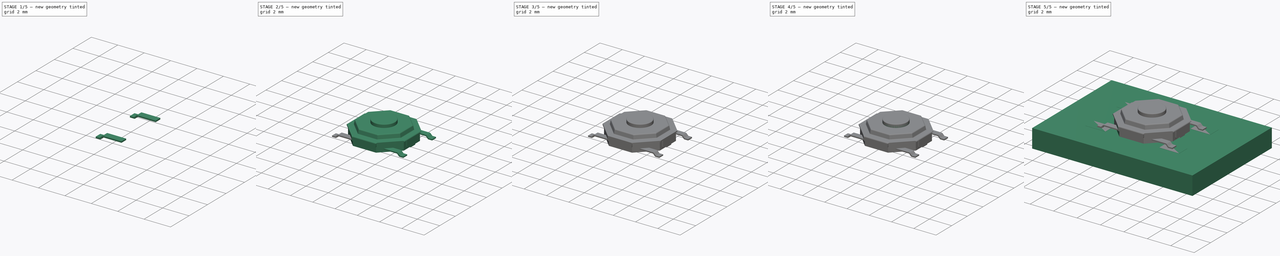
[diagram: build sequence overview — one tinted view per stage of 5, left to right]
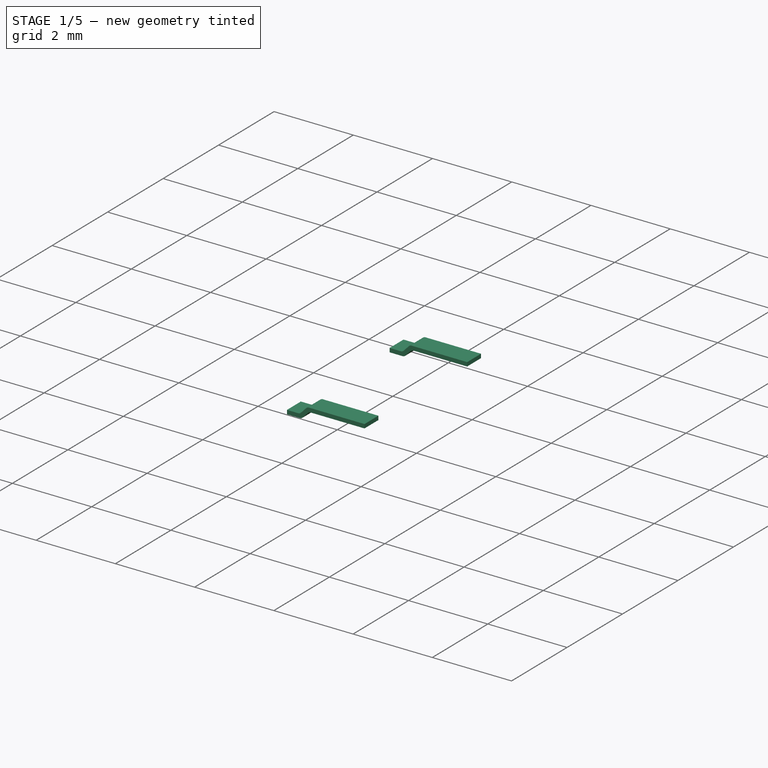
[diagram: stage 1 of 5 — iso view after this stage's code; geometry added in this stage tinted green]
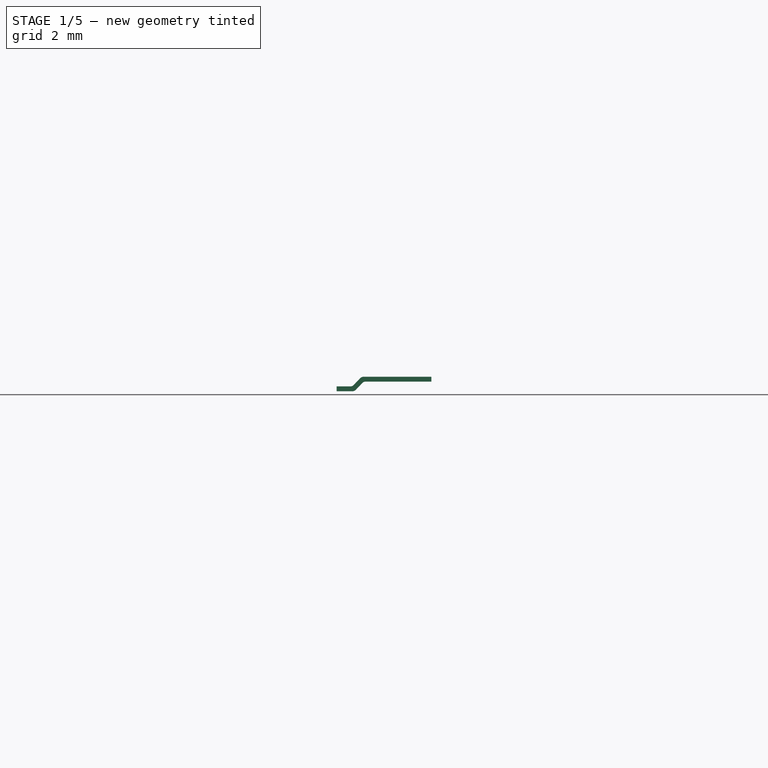
[diagram: stage 1 of 5 — front view after this stage's code; geometry added in this stage tinted green]
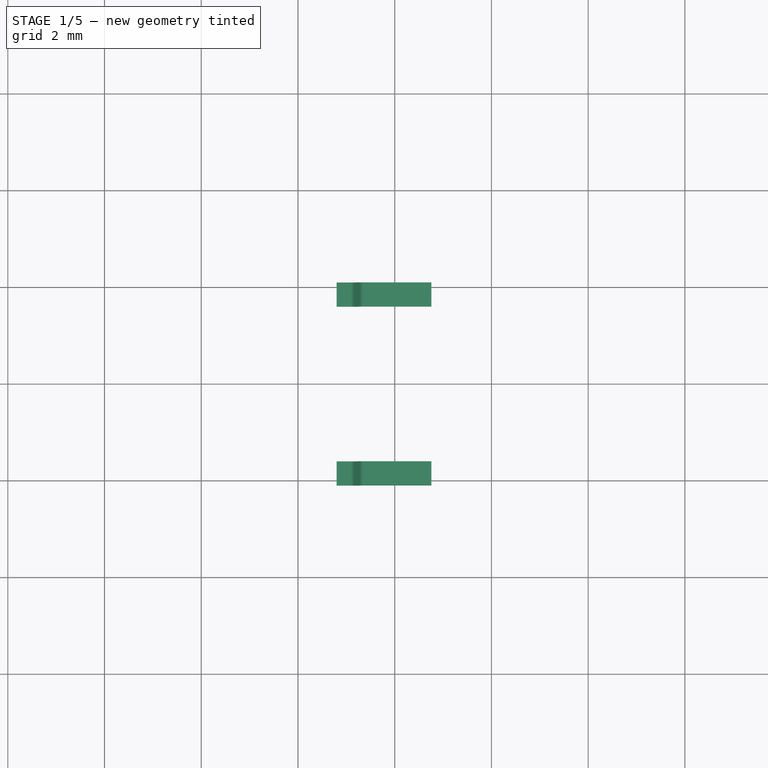
[diagram: stage 1 of 5 — top view after this stage's code; geometry added in this stage tinted green]
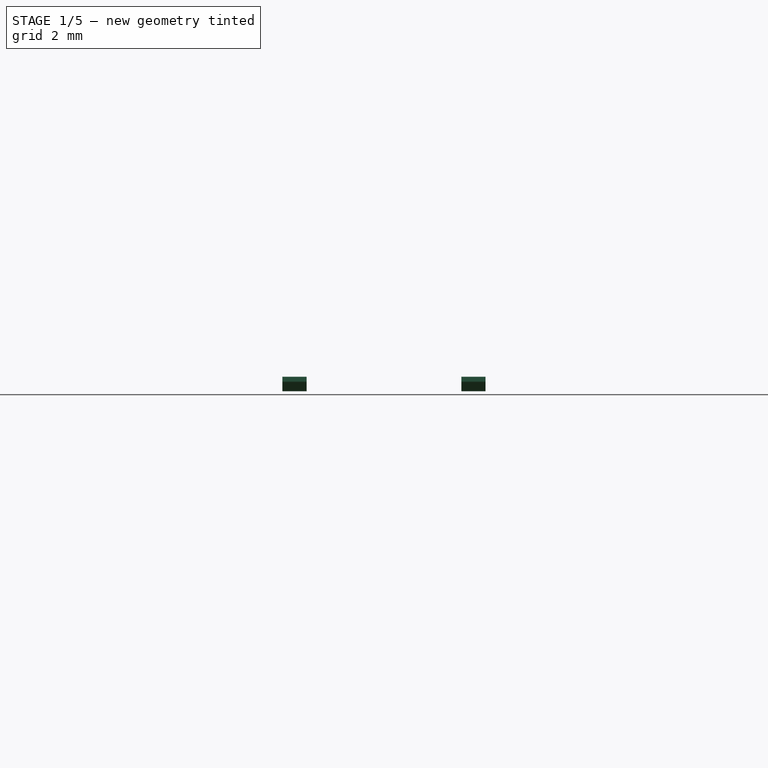
[diagram: stage 1 of 5 — right view after this stage's code; geometry added in this stage tinted green]
FCSTD DOCUMENT  (FreeCAD 0.18R13536 (Git))
Label: SW_SPST_TL3342
License: CreativeCommons Attribution-ShareAlike
LicenseURL: http://creativecommons.org/licenses/by-sa/4.0/
objects: Sketcher::SketchObject×14, PartDesign::Pad×10, Part::FeaturePython×9, App::DocumentObjectGroup×6, PartDesign::Body×5, Part::Feature×4, PartDesign::Plane×3, PartDesign::Fillet×3, Part::Fillet×3, Part::MultiFuse×2, PartDesign::ShapeBinder×2, Part::Sweep×1
note: 66 computed .brp shape members not serialized (recipe doc carries the construction recipe); baked Part::Feature solids carry a one-line shape summary decoded from their .brp

FEATURE [App::DocumentObjectGroup] Grupo  label="Carcaza"
  Group = -> [Body,Body001,Sketch004,Fusion,Fillet004002]
FEATURE [Part::Feature] Fillet004002001  label="Carcaza001"
  shape: bbox 5.201 x 5.201 x 1.235 mm, 106 faces (baked)
FEATURE [Sketcher::SketchObject] Sketch015  label="1.Sketch015"
  MapMode = 5
  Placement = pos=(0,0,0) rot=(1,0,0;1.5708rad)
  Support = -> [XZ_Plane004]
  sketch-geometry (14):
    g0: LineSegment StartX=1.24312 StartY=0.3 StartZ=0 EndX=2.64312 EndY=0.3 EndZ=0
    g1: LineSegment StartX=2.71584 StartY=0.268645 StartZ=0 EndX=2.84544 EndY=0.131355 EndZ=0
    g2: LineSegment StartX=2.91815 StartY=0.1 StartZ=0 EndX=3.2 EndY=0.1 EndZ=0
    g3: LineSegment StartX=3.2 StartY=0.1 StartZ=0 EndX=3.2 EndY=0 EndZ=0
    g4: LineSegment StartX=3.2 StartY=0 StartZ=0 EndX=2.87503 EndY=0 EndZ=0
    g5: LineSegment StartX=2.80232 StartY=0.0313553 StartZ=0 EndX=2.67272 EndY=0.168645 EndZ=0
    g6: LineSegment StartX=2.6 StartY=0.2 StartZ=0 EndX=1.24312 EndY=0.2 EndZ=0
    g7: LineSegment StartX=1.24312 StartY=0.2 StartZ=0 EndX=1.24312 EndY=0.3 EndZ=0
    g8: ArcOfCircle CenterX=2.6 CenterY=0.1 CenterZ=0 NormalX=0 NormalY=0 NormalZ=1 AngleXU=0 Radius=0.1 StartAngle=0.756591 EndAngle=1.5708
    g9: ArcOfCircle CenterX=2.64312 CenterY=0.2 CenterZ=0 NormalX=0 NormalY=0 NormalZ=1 AngleXU=0 Radius=0.1 StartAngle=0.756591 EndAngle=1.5708
    g10: ArcOfCircle CenterX=2.87503 CenterY=0.1 CenterZ=0 NormalX=0 NormalY=0 NormalZ=1 AngleXU=0 Radius=0.1 StartAngle=3.89818 EndAngle=4.71239
    g11: ArcOfCircle CenterX=2.91815 CenterY=0.2 CenterZ=0 NormalX=0 NormalY=0 NormalZ=1 AngleXU=0 Radius=0.1 StartAngle=3.89818 EndAngle=4.71239
    g12: LineSegment [constr] StartX=2.67272 StartY=0.168645 StartZ=0 EndX=2.74544 EndY=0.237289 EndZ=0
    g13: LineSegment [constr] StartX=2.84544 StartY=0.131355 StartZ=0 EndX=2.77272 EndY=0.0627107 EndZ=0
  constraints (38):
    c: Horizontal(g0)
    c: Horizontal(g2)
    c: Coincident(g2,g3)
    c: Vertical(g3)
    c: Coincident(g3,g4)
    c: Horizontal(g4)
    c: Horizontal(g6)
    c: Coincident(g6,g7)
    c: Coincident(g7,g0)
    c: Vertical(g7)
    c: Tangent(g5,g8) = -1.5708
    c: Tangent(g6,g8) = -1.5708
    c: Tangent(g1,g9) = 1.5708
    c: Tangent(g0,g9) = 1.5708
    c: Tangent(g4,g10) = 1.5708
    c: Tangent(g5,g10) = 1.5708
    c: Tangent(g2,g11) = -1.5708
    c: Tangent(g1,g11) = -1.5708
    c: Equal(g10,g11)
    c: Equal(g11,g8)
    c: Equal(g8,g9)
    c: Coincident(g12,g5)
    c: PointOnObject(g12,g1)
    c: Perpendicular(g12,g5)
    c: Equal(g12,g3)
    c: Equal(g3,g7)
    c: DistanceY(g3,g3) = 0.1
    c: DistanceX(g-1,g3) = 3.2
    c: PointOnObject(g3,g-1)
    c: Coincident(g13,g1)
    c: PointOnObject(g13,g5)
    c: Perpendicular(g1,g13)
    c: Equal(g13,g12)
    c: DistanceY(g2,g6) = 0.1
    c: DistanceX(g-1,g6) = 2.6
    c: Radius(g9) = 0.1
    c: DistanceX(g12,g1) = 0.1
    c: DistanceX(g0,g0) = 1.4
FEATURE [PartDesign::Pad] Pad007003  label="1.Pad007003"
  Length = 0.5
  Length2 = 100
  Midplane = true
  Placement = pos=(0,0,0) rot=(1,0,0;1.5708rad)
  Profile = -> Sketch015
  Refine = true
  Type = 0
FEATURE [PartDesign::Body] Body004  label="PIN_"
  Group = -> [Sketch015,Pad007003]
  Origin = -> Origin004
  Tip = -> Pad007003
FEATURE [Part::FeaturePython] Clone  label="PIN4"  # Draft clone (typed FeaturePython)
  AttacherType = Attacher::AttachEngine3D
  Fuse = false
  Objects = -> [Pad007003]
  Placement = pos=(0,1.85,0) rot=(1,0,0;1.5708rad)
  Scale = (1,1,1)
FEATURE [Part::FeaturePython] Clone001  label="PIN2"  # Draft clone (typed FeaturePython)
  AttacherType = Attacher::AttachEngine3D
  Fuse = false
  Objects = -> [Clone]
  Placement = pos=(0,-1.85,0) rot=(1,0,0;1.5708rad)
  Scale = (1,1,1)
FEATURE [App::DocumentObjectGroup] Grupo004  label="PIN__"
  Group = -> [Body004]
FEATURE [App::DocumentObjectGroup] Grupo002  label="make"
  Group = -> [Grupo001,Grupo,Grupo003,Grupo004]
FEATURE [Part::FeaturePython] Clone002  label="PIN1"  # Draft clone (typed FeaturePython)
  AttacherType = Attacher::AttachEngine3D
  Fuse = false
  Objects = -> [Clone]
  Placement = pos=(0,-1.85,0) rot=(0,0.707107,0.707107;3.14159rad)
  Scale = (1,1,1)
FEATURE [Part::FeaturePython] Clone003  label="PIN3"  # Draft clone (typed FeaturePython)
  AttacherType = Attacher::AttachEngine3D
  Fuse = false
  Objects = -> [Clone001]
  Placement = pos=(0,1.85,0) rot=(0,0.707107,0.707107;3.14159rad)
  Scale = (1,1,1)
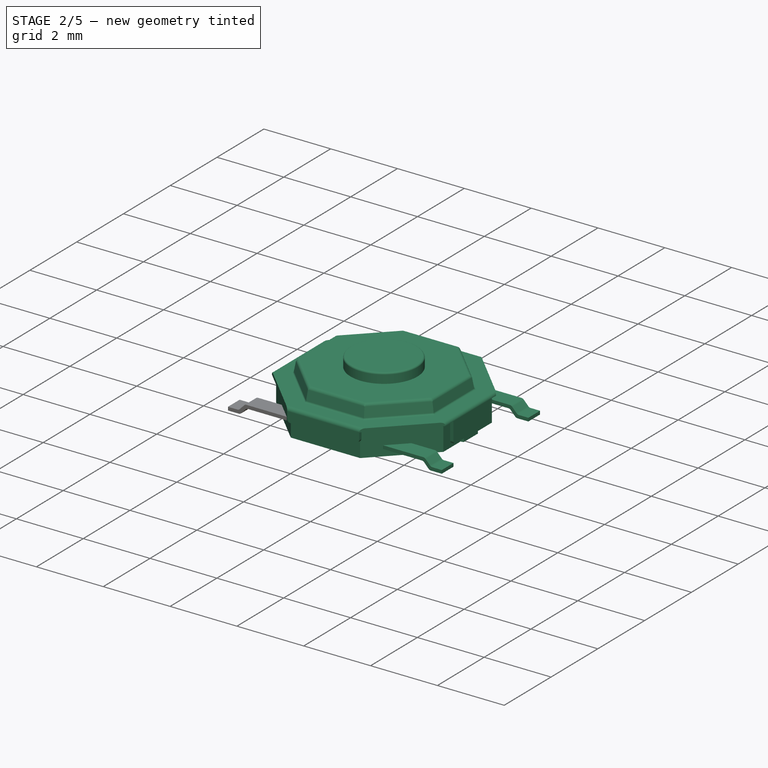
[diagram: stage 2 of 5 — iso view after this stage's code; geometry added in this stage tinted green]
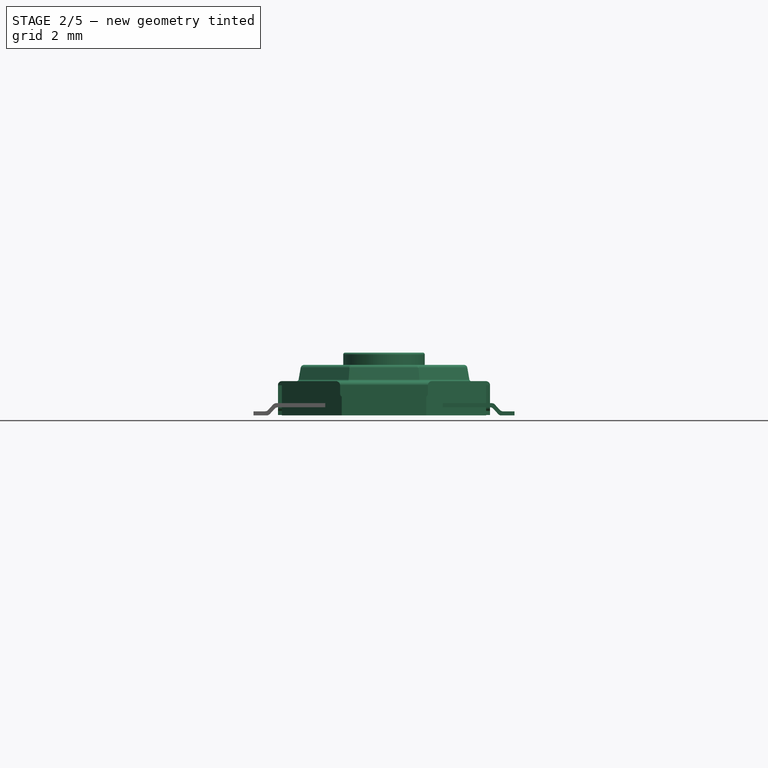
[diagram: stage 2 of 5 — front view after this stage's code; geometry added in this stage tinted green]
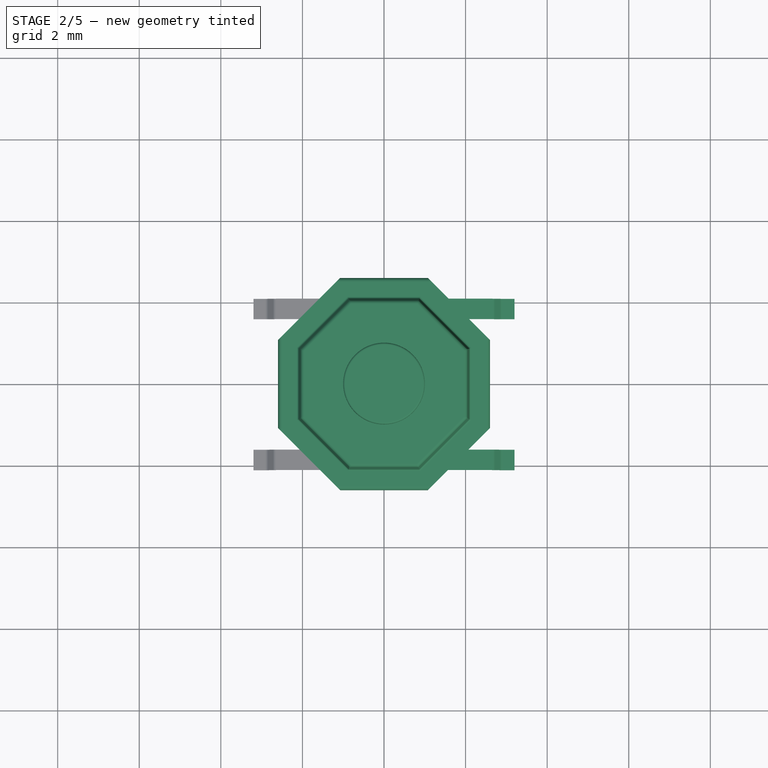
[diagram: stage 2 of 5 — top view after this stage's code; geometry added in this stage tinted green]
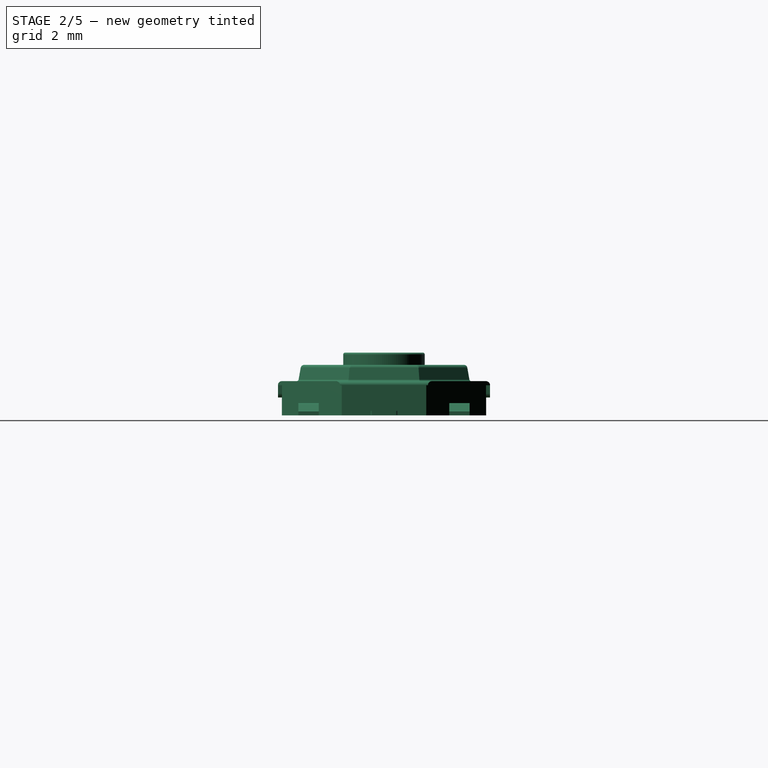
[diagram: stage 2 of 5 — right view after this stage's code; geometry added in this stage tinted green]
FEATURE [App::DocumentObjectGroup] SW_SPST_TL3342_fp
  Group = -> [FCrtYd_lines,FFab_lines,Filk_lines,TopPads,newPCB]
FEATURE [PartDesign::Plane] DatumPlane  label="plano_1.24"
  AttachmentOffset = pos=(0,0,1.24) rot=(0,0,1;0rad)
  MapMode = 2
  Placement = pos=(0,0,1.24) rot=(0,0,1;0rad)
  Support = -> [XY_Plane]
FEATURE [Sketcher::SketchObject] Sketch
  MapMode = 5
  Placement = pos=(0,0,1.24) rot=(0,0,1;0rad)
  Support = -> [DatumPlane]
  sketch-geometry (10):
    g0: Circle [constr] CenterX=0 CenterY=0 CenterZ=0 NormalX=0 NormalY=0 NormalZ=1 AngleXU=0 Radius=2.2
    g1: LineSegment StartX=-0.841904 StartY=2.03253 StartZ=0 EndX=0.841904 EndY=2.03253 EndZ=0
    g2: LineSegment StartX=0.841904 StartY=2.03253 StartZ=0 EndX=2.03253 EndY=0.841904 EndZ=0
    g3: LineSegment StartX=2.03253 StartY=0.841904 StartZ=0 EndX=2.03253 EndY=-0.841904 EndZ=0
    g4: LineSegment StartX=2.03253 StartY=-0.841904 StartZ=0 EndX=0.841904 EndY=-2.03253 EndZ=0
    g5: LineSegment StartX=0.841904 StartY=-2.03253 StartZ=0 EndX=-0.841904 EndY=-2.03253 EndZ=0
    g6: LineSegment StartX=-0.841904 StartY=-2.03253 StartZ=0 EndX=-2.03253 EndY=-0.841904 EndZ=0
    g7: LineSegment StartX=-2.03253 StartY=-0.841904 StartZ=0 EndX=-2.03253 EndY=0.841904 EndZ=0
    g8: LineSegment StartX=-2.03253 StartY=0.841904 StartZ=0 EndX=-0.841904 EndY=2.03253 EndZ=0
    g9: Circle CenterX=0 CenterY=0 CenterZ=0 NormalX=0 NormalY=0 NormalZ=1 AngleXU=0 Radius=1
  constraints (33):
    c: Coincident(g0,g-1)
    c: PointOnObject(g1,g0)
    c: PointOnObject(g1,g0)
    c: Horizontal(g1)
    c: Coincident(g1,g2)
    c: PointOnObject(g2,g0)
    c: Coincident(g2,g3)
    c: PointOnObject(g3,g0)
    c: Vertical(g3)
    c: Coincident(g3,g4)
    c: PointOnObject(g4,g0)
    c: Coincident(g4,g5)
    c: PointOnObject(g5,g0)
    c: Horizontal(g5)
    c: Coincident(g5,g6)
    c: PointOnObject(g6,g0)
    c: Coincident(g6,g7)
    c: PointOnObject(g7,g0)
    c: Vertical(g7)
    c: Coincident(g7,g8)
    c: Coincident(g8,g1)
    c: Parallel(g4,g8)
    c: Parallel(g6,g2)
    c: Equal(g7,g8)
    c: Equal(g8,g1)
    c: Equal(g1,g2)
    c: Equal(g2,g3)
    c: Equal(g3,g4)
    c: Equal(g4,g5)
    c: Equal(g5,g6)
    c: Radius(g0) = 2.2
    c: Coincident(g9,g-1)
    c: Radius(g9) = 1
FEATURE [PartDesign::Pad] Pad  label="Pad_Supp"
  Length = 0.1
  Length2 = 100
  Placement = pos=(0,0,1.24) rot=(0,0,1;0rad)
  Profile = -> Sketch
  Refine = true
  Reversed = true
  Type = 0
FEATURE [Sketcher::SketchObject] Sketch004  label="Trayectoria"
  MapMode = 5
  Placement = pos=(0,0,0.84) rot=(0,0,1;0rad)
  Support = -> [DatumPlane002]
  sketch-geometry (9):
    g0: Circle [constr] CenterX=0 CenterY=0 CenterZ=0 NormalX=0 NormalY=0 NormalZ=1 AngleXU=0 Radius=2.18
    g1: LineSegment StartX=-0.83425 StartY=2.01406 StartZ=0 EndX=0.83425 EndY=2.01406 EndZ=0
    g2: LineSegment StartX=0.83425 StartY=2.01406 StartZ=0 EndX=2.01406 EndY=0.83425 EndZ=0
    g3: LineSegment StartX=2.01406 StartY=0.83425 StartZ=0 EndX=2.01406 EndY=-0.83425 EndZ=0
    g4: LineSegment StartX=2.01406 StartY=-0.83425 StartZ=0 EndX=0.83425 EndY=-2.01406 EndZ=0
    g5: LineSegment StartX=0.83425 StartY=-2.01406 StartZ=0 EndX=-0.83425 EndY=-2.01406 EndZ=0
    g6: LineSegment StartX=-0.83425 StartY=-2.01406 StartZ=0 EndX=-2.01406 EndY=-0.83425 EndZ=0
    g7: LineSegment StartX=-2.01406 StartY=-0.83425 StartZ=0 EndX=-2.01406 EndY=0.83425 EndZ=0
    g8: LineSegment StartX=-2.01406 StartY=0.83425 StartZ=0 EndX=-0.83425 EndY=2.01406 EndZ=0
  constraints (30):
    c: Coincident(g0,g-1)
    c: PointOnObject(g1,g0)
    c: PointOnObject(g1,g0)
    c: Horizontal(g1)
    c: Coincident(g1,g2)
    c: PointOnObject(g2,g0)
    c: Coincident(g2,g3)
    c: PointOnObject(g3,g0)
    c: Coincident(g3,g4)
    c: PointOnObject(g4,g0)
    c: Coincident(g4,g5)
    c: PointOnObject(g5,g0)
    c: Horizontal(g5)
    c: Coincident(g5,g6)
    c: PointOnObject(g6,g0)
    c: Coincident(g6,g7)
    c: PointOnObject(g7,g0)
    c: Vertical(g7)
    c: Coincident(g7,g8)
    c: Coincident(g8,g1)
    c: Parallel(g6,g2)
    c: Parallel(g4,g8)
    c: Equal(g2,g1)
    c: Equal(g1,g8)
    c: Equal(g8,g7)
    c: Equal(g7,g6)
    c: Equal(g6,g5)
    c: Equal(g5,g4)
    c: Equal(g4,g3)
    c: Radius(g0) = 2.18
FEATURE [Sketcher::SketchObject] Sketch005  label="base"
  MapMode = 5
  Placement = pos=(0,0,0) rot=(1,0,0;1.5708rad)
  Support = -> [XZ_Plane001]
  sketch-geometry (4):
    g0: LineSegment StartX=-2.03 StartY=1.24 StartZ=0 EndX=-2.1 EndY=0.84 EndZ=0
    g1: LineSegment StartX=-2.1 StartY=0.84 StartZ=0 EndX=-2 EndY=0.84 EndZ=0
    g2: LineSegment StartX=-2 StartY=0.84 StartZ=0 EndX=-1.93 EndY=1.24 EndZ=0
    g3: LineSegment StartX=-1.93 StartY=1.24 StartZ=0 EndX=-2.03 EndY=1.24 EndZ=0
  constraints (13):
    c: Coincident(g0,g1)
    c: Horizontal(g1)
    c: Coincident(g1,g2)
    c: Coincident(g2,g3)
    c: Coincident(g3,g0)
    c: Horizontal(g3)
    c: Parallel(g0,g2)
    c: Equal(g3,g1)
    c: DistanceX(g3,g3) = 0.1
    c: DistanceX(g0,g-1) = 2.03
    c: DistanceX(g0,g-1) = 2.1
    c: DistanceY(g-1,g1) = 0.84
    c: DistanceY(g-1,g2) = 1.24
FEATURE [Part::Sweep] Sweep  label="Sweep-C"
  Frenet = false
  Sections = -> [Sketch005]
  Solid = true
  Spine = -> Sketch004
  Transition = 1
FEATURE [Part::Fillet] Fillet002  label="Fillet002-C"
  Base = -> Sweep
  Edges = 8 edges r=0.09: [Edge1,Edge13,Edge21,Edge29,Edge37,Edge45,Edge53,Edge61]
FEATURE [Part::Fillet] Fillet003  label="Fillet003-A"
  Base = -> Pad
  Edges = 8 edges r=0.09: [Edge3,Edge6,Edge9,Edge12,Edge15,Edge18,Edge21,Edge23]
FEATURE [Part::MultiFuse] Relleno_mp_cp  label="SW_SPST_TL3342_"
  Refine = true
  Shapes = -> [Pad007001,Fillet004001,Fillet004002001,Clone,Clone001,Clone003,Clone002]
FEATURE [Part::Feature] Relleno_fd_cp  label="SW_SPST_TL3342"
  shape: bbox 6.401 x 5.201 x 1.541 mm, 193 faces (baked)
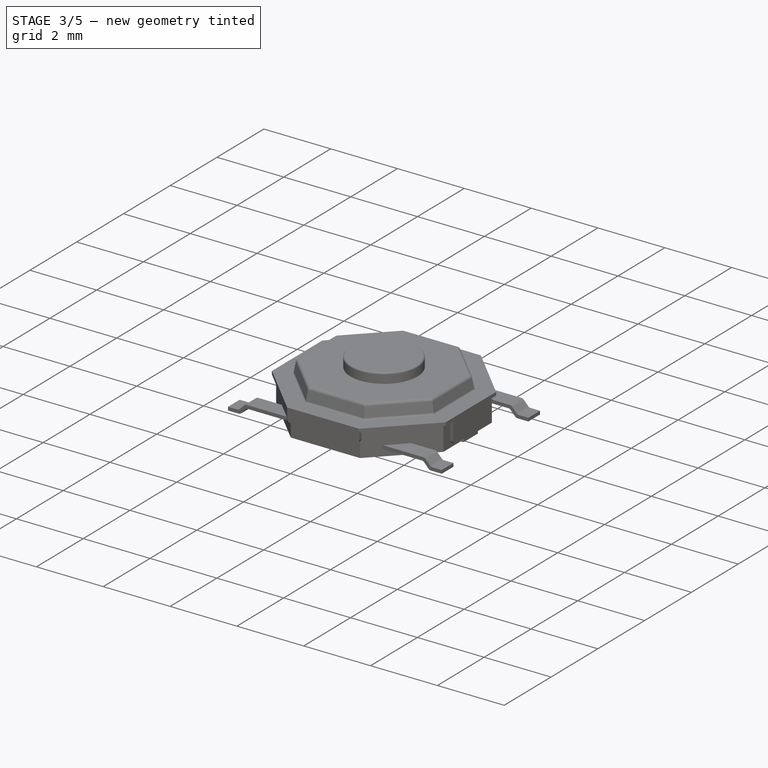
[diagram: stage 3 of 5 — iso view after this stage's code; geometry added in this stage tinted green]
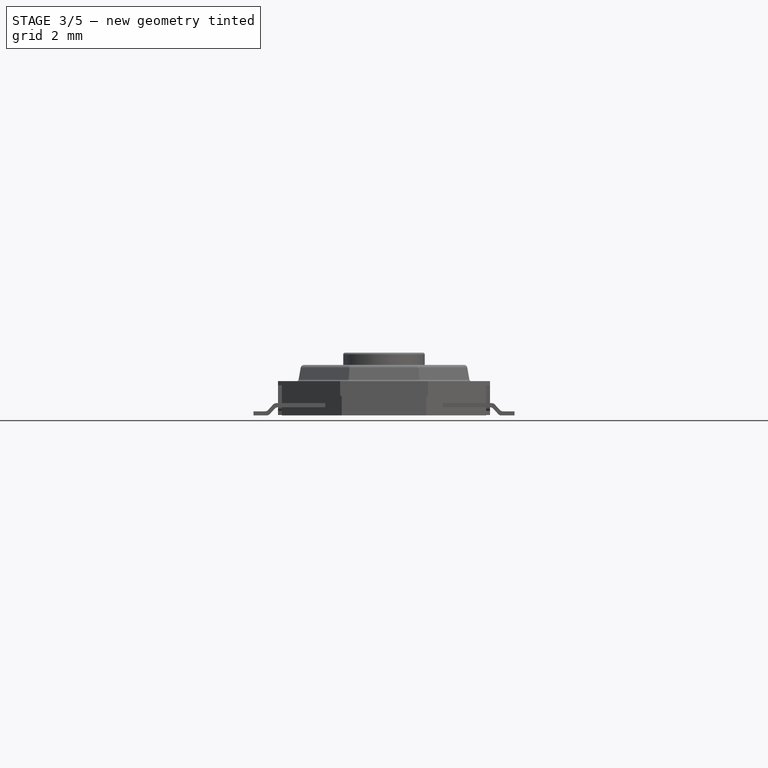
[diagram: stage 3 of 5 — front view after this stage's code; geometry added in this stage tinted green]
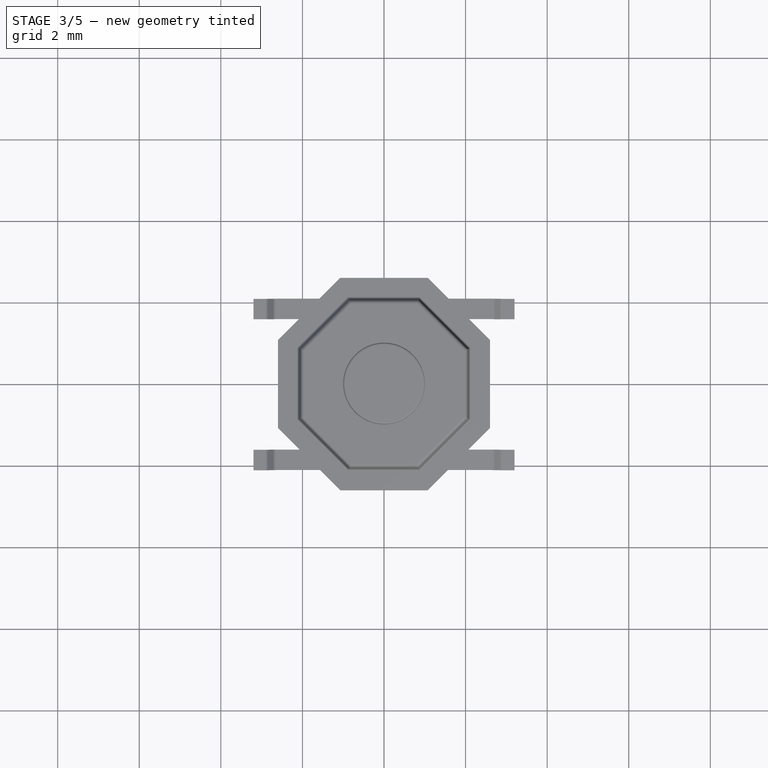
[diagram: stage 3 of 5 — top view after this stage's code; geometry added in this stage tinted green]
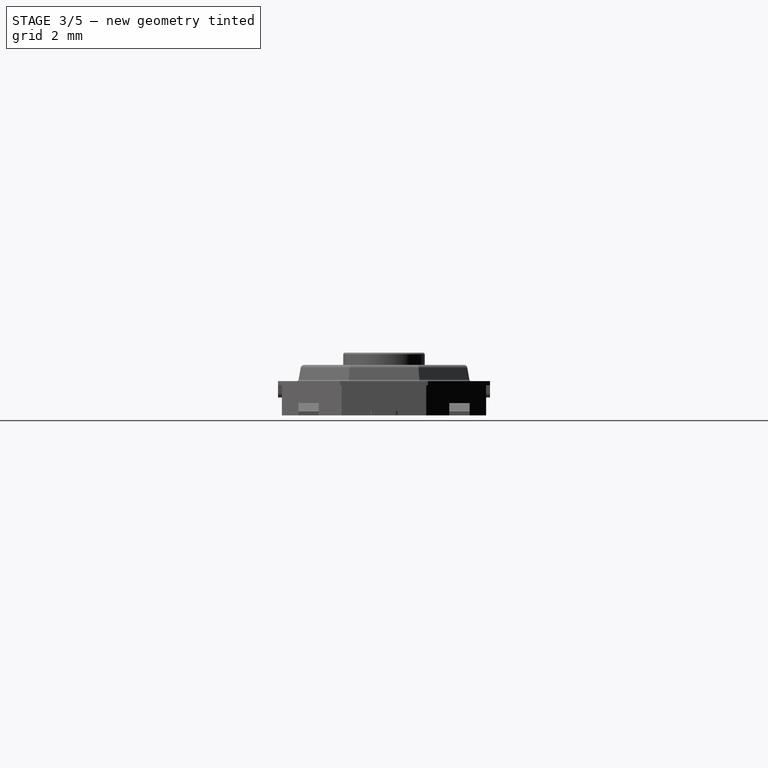
[diagram: stage 3 of 5 — right view after this stage's code; geometry added in this stage tinted green]
FEATURE [PartDesign::Body] Body  label="supp-A"
  Group = -> [DatumPlane,Sketch,Pad]
  Origin = -> Origin
  Tip = -> Pad
FEATURE [PartDesign::Plane] DatumPlane002  label="plano_0.84mm"
  AttachmentOffset = pos=(0,0,0.84) rot=(0,0,1;0rad)
  MapMode = 2
  Placement = pos=(0,0,0.84) rot=(0,0,1;0rad)
  Support = -> [XY_Plane001]
FEATURE [Sketcher::SketchObject] Sketch001
  MapMode = 5
  Placement = pos=(0,0,0.84) rot=(0,0,1;0rad)
  Support = -> [DatumPlane002]
  sketch-geometry (18):
    g0: Circle [constr] CenterX=0 CenterY=0 CenterZ=0 NormalX=0 NormalY=0 NormalZ=1 AngleXU=0 Radius=2.81422
    g1: LineSegment StartX=-1.07696 StartY=2.6 StartZ=0 EndX=1.07696 EndY=2.6 EndZ=0
    g2: LineSegment StartX=1.07696 StartY=2.6 StartZ=0 EndX=2.6 EndY=1.07696 EndZ=0
    g3: LineSegment StartX=2.6 StartY=1.07696 StartZ=0 EndX=2.6 EndY=-1.07696 EndZ=0
    g4: LineSegment StartX=2.6 StartY=-1.07696 StartZ=0 EndX=1.07696 EndY=-2.6 EndZ=0
    g5: LineSegment StartX=1.07696 StartY=-2.6 StartZ=0 EndX=-1.07696 EndY=-2.6 EndZ=0
    g6: LineSegment StartX=-1.07696 StartY=-2.6 StartZ=0 EndX=-2.6 EndY=-1.07696 EndZ=0
    g7: LineSegment StartX=-2.6 StartY=-1.07696 StartZ=0 EndX=-2.6 EndY=1.07696 EndZ=0
    g8: LineSegment StartX=-2.6 StartY=1.07696 StartZ=0 EndX=-1.07696 EndY=2.6 EndZ=0
    g9: Circle [constr] CenterX=0 CenterY=0 CenterZ=0 NormalX=0 NormalY=0 NormalZ=1 AngleXU=0 Radius=2.27
    g10: LineSegment StartX=-0.868691 StartY=2.09721 StartZ=0 EndX=0.868691 EndY=2.09721 EndZ=0
    g11: LineSegment StartX=0.868691 StartY=2.09721 StartZ=0 EndX=2.09721 EndY=0.868691 EndZ=0
    g12: LineSegment StartX=2.09721 StartY=0.868691 StartZ=0 EndX=2.09721 EndY=-0.868691 EndZ=0
    g13: LineSegment StartX=2.09721 StartY=-0.868691 StartZ=0 EndX=0.868691 EndY=-2.09721 EndZ=0
    g14: LineSegment StartX=0.868691 StartY=-2.09721 StartZ=0 EndX=-0.868691 EndY=-2.09721 EndZ=0
    g15: LineSegment StartX=-0.868691 StartY=-2.09721 StartZ=0 EndX=-2.09721 EndY=-0.868691 EndZ=0
    g16: LineSegment StartX=-2.09721 StartY=-0.868691 StartZ=0 EndX=-2.09721 EndY=0.868691 EndZ=0
    g17: LineSegment StartX=-2.09721 StartY=0.868691 StartZ=0 EndX=-0.868691 EndY=2.09721 EndZ=0
  constraints (61):
    c: Coincident(g0,g-1)
    c: PointOnObject(g1,g0)
    c: PointOnObject(g1,g0)
    c: Horizontal(g1)
    c: Coincident(g1,g2)
    c: PointOnObject(g2,g0)
    c: Coincident(g2,g3)
    c: PointOnObject(g3,g0)
    c: Vertical(g3)
    c: Coincident(g3,g4)
    c: PointOnObject(g4,g0)
    c: Coincident(g4,g5)
    c: PointOnObject(g5,g0)
    c: Horizontal(g5)
    c: Coincident(g5,g6)
    c: PointOnObject(g6,g0)
    c: Coincident(g6,g7)
    c: PointOnObject(g7,g0)
    c: Vertical(g7)
    c: Coincident(g7,g8)
    c: Coincident(g8,g1)
    c: Parallel(g4,g8)
    c: Parallel(g6,g2)
    c: Equal(g5,g6)
    c: Equal(g6,g7)
    c: Equal(g7,g8)
    c: Equal(g8,g1)
    c: Equal(g1,g2)
    c: Equal(g2,g3)
    c: DistanceX(g6,g3) = 5.2
    c: Coincident(g9,g-1)
    c: PointOnObject(g10,g9)
    c: PointOnObject(g10,g9)
    c: Horizontal(g10)
    c: Coincident(g10,g11)
    c: PointOnObject(g11,g9)
    c: Coincident(g11,g12)
    c: PointOnObject(g12,g9)
    c: Vertical(g12)
    c: Coincident(g12,g13)
    c: PointOnObject(g13,g9)
    c: Coincident(g13,g14)
    c: PointOnObject(g14,g9)
    c: Horizontal(g14)
    c: Coincident(g14,g15)
    c: PointOnObject(g15,g9)
    c: Coincident(g15,g16)
    c: PointOnObject(g16,g9)
    c: Vertical(g16)
    c: Coincident(g16,g17)
    c: Coincident(g17,g10)
    c: Parallel(g15,g11)
    c: Parallel(g13,g17)
    c: Equal(g13,g14)
    c: Equal(g14,g12)
    c: Equal(g12,g11)
    c: Equal(g11,g10)
    c: Equal(g10,g17)
    c: Equal(g17,g16)
    c: Equal(g16,g15)
    c: Radius(g9) = 2.27
FEATURE [PartDesign::Pad] Pad001  label="1.Pad001"
  Length = 0.1
  Length2 = 100
  Placement = pos=(0,0,0.84) rot=(0,0,1;0rad)
  Profile = -> Sketch001
  Refine = true
  Reversed = true
  Type = 0
FEATURE [Sketcher::SketchObject] Sketch006
  ExternalGeometry = -> [Pad001]
  MapMode = 5
  Placement = pos=(0,0,0.74) rot=(1,0,0;3.14159rad)
  Support = -> [Pad001]
  sketch-geometry (16):
    g0: LineSegment StartX=-1.07696 StartY=2.6 StartZ=0 EndX=1.07696 EndY=2.6 EndZ=0
    g1: LineSegment StartX=1.07696 StartY=2.6 StartZ=0 EndX=1.07696 EndY=2.5 EndZ=0
    g2: LineSegment StartX=1.07696 StartY=2.5 StartZ=0 EndX=-1.07696 EndY=2.5 EndZ=0
    g3: LineSegment StartX=-1.07696 StartY=2.5 StartZ=0 EndX=-1.07696 EndY=2.6 EndZ=0
    g4: LineSegment [constr] StartX=2.6 StartY=1.07696 StartZ=0 EndX=2.5 EndY=1.07696 EndZ=0
    g5: LineSegment [constr] StartX=2.5 StartY=1.07696 StartZ=0 EndX=2.5 EndY=-1.07696 EndZ=0
    g6: LineSegment [constr] StartX=2.5 StartY=-1.07696 StartZ=0 EndX=2.6 EndY=-1.07696 EndZ=0
    g7: LineSegment [constr] StartX=2.6 StartY=-1.07696 StartZ=0 EndX=2.6 EndY=1.07696 EndZ=0
    g8: LineSegment [constr] StartX=-2.6 StartY=1.07696 StartZ=0 EndX=-2.5 EndY=1.07696 EndZ=0
    g9: LineSegment [constr] StartX=-2.5 StartY=1.07696 StartZ=0 EndX=-2.5 EndY=-1.07696 EndZ=0
    g10: LineSegment [constr] StartX=-2.5 StartY=-1.07696 StartZ=0 EndX=-2.6 EndY=-1.07696 EndZ=0
    g11: LineSegment [constr] StartX=-2.6 StartY=-1.07696 StartZ=0 EndX=-2.6 EndY=1.07696 EndZ=0
    g12: LineSegment StartX=-1.07696 StartY=-2.6 StartZ=0 EndX=1.07696 EndY=-2.6 EndZ=0
    g13: LineSegment StartX=1.07696 StartY=-2.6 StartZ=0 EndX=1.07696 EndY=-2.5 EndZ=0
    g14: LineSegment StartX=1.07696 StartY=-2.5 StartZ=0 EndX=-1.07696 EndY=-2.5 EndZ=0
    g15: LineSegment StartX=-1.07696 StartY=-2.5 StartZ=0 EndX=-1.07696 EndY=-2.6 EndZ=0
  constraints (48):
    c: Coincident(g0,g1)
    c: Coincident(g3,g0)
    c: Horizontal(g2)
    c: Vertical(g1)
    c: Vertical(g3)
    c: PointOnObject(g0,g-3)
    c: Coincident(g6,g7)
    c: Coincident(g7,g4)
    c: Horizontal(g4)
    c: Horizontal(g6)
    c: Vertical(g5)
    c: Vertical(g7)
    c: PointOnObject(g4,g-5)
    c: Coincident(g10,g11)
    c: Coincident(g11,g8)
    c: Horizontal(g8)
    c: Horizontal(g10)
    c: Vertical(g9)
    c: Vertical(g11)
    c: PointOnObject(g8,g-4)
    c: Coincident(g12,g13)
    c: Coincident(g15,g12)
    c: Horizontal(g12)
    c: Horizontal(g14)
    c: Vertical(g13)
    c: Vertical(g15)
    c: PointOnObject(g12,g-6)
    c: Symmetric(g0,g0,g-2)
    c: Symmetric(g6,g4,g-1)
    c: Equal(g9,g2)
    c: Equal(g2,g5)
    c: Equal(g5,g14)
    c: Equal(g8,g3)
    c: Equal(g3,g4)
    c: Equal(g4,g13)
    c: DistanceY(g2,g0) = 0.1
    c: Symmetric(g12,g12,g-2)
    c: Symmetric(g10,g8,g-1)
    c: Coincident(g9,g8)
    c: Coincident(g10,g9)
    c: Coincident(g2,g3)
    c: Coincident(g1,g2)
    c: Coincident(g4,g5)
    c: Coincident(g5,g6)
    c: Coincident(g13,g14)
    c: Coincident(g15,g14)
    c: DistanceX(g-3,g-3) = 2.15391
    c: Coincident(g0,g-3)
FEATURE [PartDesign::Pad] Pad002  label="2.Pad002"
  BaseFeature = -> Pad001
  Length = 0.3
  Length2 = 100
  Placement = pos=(0,0,0.84) rot=(0,0,1;0rad)
  Profile = -> Sketch006
  Refine = true
  Type = 0
FEATURE [Sketcher::SketchObject] Sketch007
  ExternalGeometry = -> [Pad002]
  MapMode = 5
  Placement = pos=(0,0,0.74) rot=(1,0,0;3.14159rad)
  Support = -> [Pad002]
  sketch-geometry (8):
    g0: LineSegment StartX=-2.6 StartY=0.75 StartZ=0 EndX=-2.5 EndY=0.75 EndZ=0
    g1: LineSegment StartX=-2.5 StartY=0.75 StartZ=0 EndX=-2.5 EndY=-0.75 EndZ=0
    g2: LineSegment StartX=-2.5 StartY=-0.75 StartZ=0 EndX=-2.6 EndY=-0.75 EndZ=0
    g3: LineSegment StartX=-2.6 StartY=-0.75 StartZ=0 EndX=-2.6 EndY=0.75 EndZ=0
    g4: LineSegment StartX=2.6 StartY=0.75 StartZ=0 EndX=2.5 EndY=0.75 EndZ=0
    g5: LineSegment StartX=2.5 StartY=0.75 StartZ=0 EndX=2.5 EndY=-0.75 EndZ=0
    g6: LineSegment StartX=2.5 StartY=-0.75 StartZ=0 EndX=2.6 EndY=-0.75 EndZ=0
    g7: LineSegment StartX=2.6 StartY=-0.75 StartZ=0 EndX=2.6 EndY=0.75 EndZ=0
  constraints (24):
    c: Coincident(g0,g1)
    c: Coincident(g1,g2)
    c: Coincident(g2,g3)
    c: Coincident(g3,g0)
    c: Horizontal(g0)
    c: Horizontal(g2)
    c: Vertical(g1)
    c: Vertical(g3)
    c: PointOnObject(g0,g-3)
    c: Coincident(g4,g5)
    c: Coincident(g5,g6)
    c: Coincident(g6,g7)
    c: Coincident(g7,g4)
    c: Horizontal(g4)
    c: Horizontal(g6)
    c: Vertical(g5)
    c: Vertical(g7)
    c: PointOnObject(g4,g-4)
    c: Equal(g1,g5)
    c: Equal(g0,g4)
    c: DistanceX(g2,g2) = 0.1
    c: DistanceY(g1,g1) = 1.5
    c: Symmetric(g1,g0,g-1)
    c: Symmetric(g5,g4,g-1)
FEATURE [PartDesign::Pad] Pad003  label="3.Pad003"
  BaseFeature = -> Pad002
  Length = 0.63
  Length2 = 100
  Placement = pos=(0,0,0.84) rot=(0,0,1;0rad)
  Profile = -> Sketch007
  Refine = true
  Type = 0
FEATURE [PartDesign::Fillet] Fillet  label="4.Fillet"
  Base = -> Pad003 [Edge73,Edge74,Edge52,Edge55,Edge89,Edge85,Edge83,Edge78]
  BaseFeature = -> Pad003
  Placement = pos=(0,0,0.84) rot=(0,0,1;0rad)
  Radius = 0.1
FEATURE [Sketcher::SketchObject] Sketch008
  ExternalGeometry = -> [Fillet]
  MapMode = 5
  Placement = pos=(0,0,0.11) rot=(1,0,0;3.14159rad)
  Support = -> [Fillet]
  sketch-geometry (12):
    g0: LineSegment StartX=-2.6 StartY=-0.3 StartZ=0 EndX=-2.6 EndY=0.3 EndZ=0
    g1: LineSegment StartX=2.6 StartY=-0.3 StartZ=0 EndX=2.6 EndY=0.3 EndZ=0
    g2: LineSegment StartX=-1.9 StartY=-0.5 StartZ=0 EndX=-2.6 EndY=-0.3 EndZ=0
    g3: LineSegment StartX=-1.9 StartY=0.5 StartZ=0 EndX=-2.6 EndY=0.3 EndZ=0
    g4: LineSegment StartX=-1.9 StartY=0.5 StartZ=0 EndX=-1.6 EndY=0.5 EndZ=0
    g5: LineSegment StartX=-1.6 StartY=0.5 StartZ=0 EndX=-1.6 EndY=-0.5 EndZ=0
    g6: LineSegment StartX=-1.6 StartY=-0.5 StartZ=0 EndX=-1.9 EndY=-0.5 EndZ=0
    g7: LineSegment StartX=1.9 StartY=-0.5 StartZ=0 EndX=1.6 EndY=-0.5 EndZ=0
    g8: LineSegment StartX=1.6 StartY=-0.5 StartZ=0 EndX=1.6 EndY=0.5 EndZ=0
    g9: LineSegment StartX=1.6 StartY=0.5 StartZ=0 EndX=1.9 EndY=0.5 EndZ=0
    g10: LineSegment StartX=2.6 StartY=-0.3 StartZ=0 EndX=1.9 EndY=-0.5 EndZ=0
    g11: LineSegment StartX=2.6 StartY=0.3 StartZ=0 EndX=1.9 EndY=0.5 EndZ=0
  constraints (35):
    c: Vertical(g0)
    c: PointOnObject(g0,g-3)
    c: Vertical(g1)
    c: PointOnObject(g1,g-4)
    c: Symmetric(g0,g0,g-1)
    c: Symmetric(g1,g1,g-1)
    c: DistanceY(g0,g0) = 0.6
    c: Symmetric(g2,g3,g-1)
    c: Coincident(g2,g0)
    c: Coincident(g3,g0)
    c: Equal(g0,g1)
    c: Symmetric(g7,g9,g-1)
    c: Coincident(g4,g5)
    c: Coincident(g5,g6)
    c: Horizontal(g4)
    c: Horizontal(g6)
    c: Vertical(g5)
    c: Coincident(g4,g3)
    c: Coincident(g6,g2)
    c: DistanceY(g5,g5) = 1
    c: DistanceX(g0,g4) = 1
    c: Coincident(g7,g8)
    c: Coincident(g8,g9)
    c: Horizontal(g7)
    c: Horizontal(g9)
    c: Vertical(g8)
    c: Equal(g4,g9)
    c: DistanceX(g6,g6) = 0.3
    c: Equal(g5,g8)
    c: Coincident(g10,g1)
    c: Coincident(g10,g7)
    c: Coincident(g11,g1)
    c: PointOnObject(g11,g9)
    c: Coincident(g11,g9)
    c: Equal(g3,g11)
FEATURE [PartDesign::Pad] Pad004  label="5.Pad004"
  BaseFeature = -> Fillet
  Length = 0.1
  Length2 = 100
  Placement = pos=(0,0,0.84) rot=(0,0,1;0rad)
  Profile = -> Sketch008
  Refine = true
  Type = 0
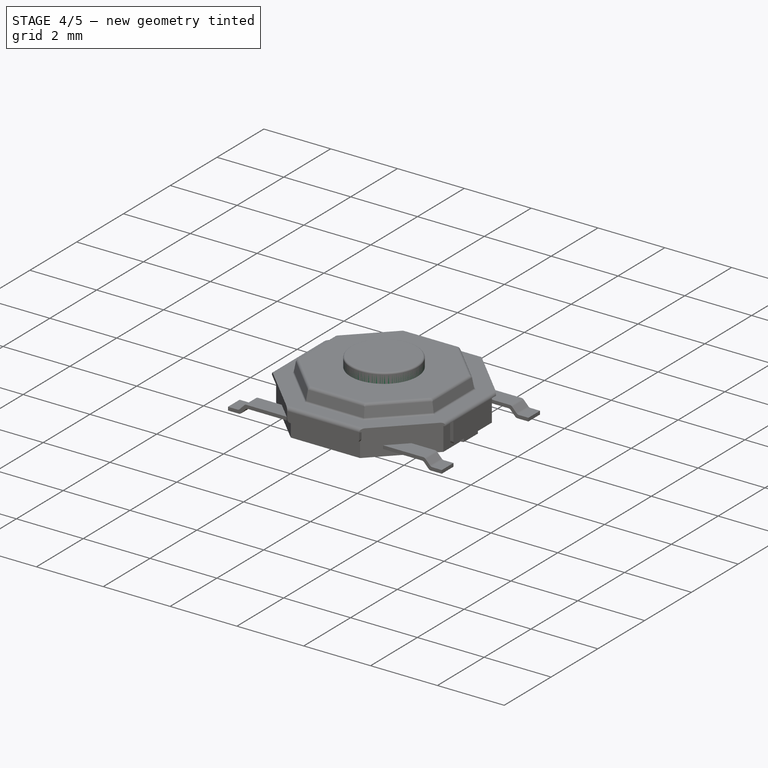
[diagram: stage 4 of 5 — iso view after this stage's code; geometry added in this stage tinted green]
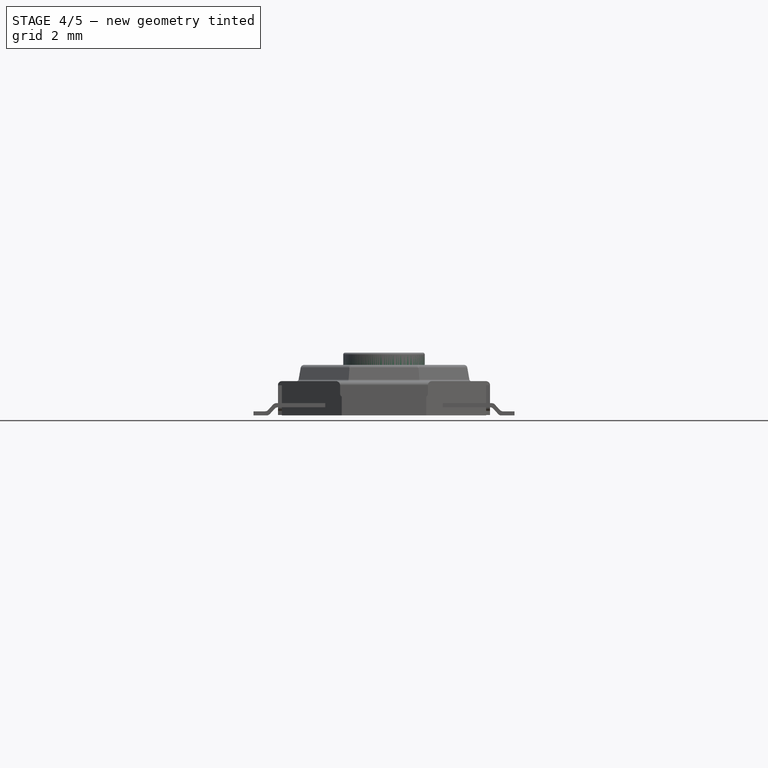
[diagram: stage 4 of 5 — front view after this stage's code; geometry added in this stage tinted green]
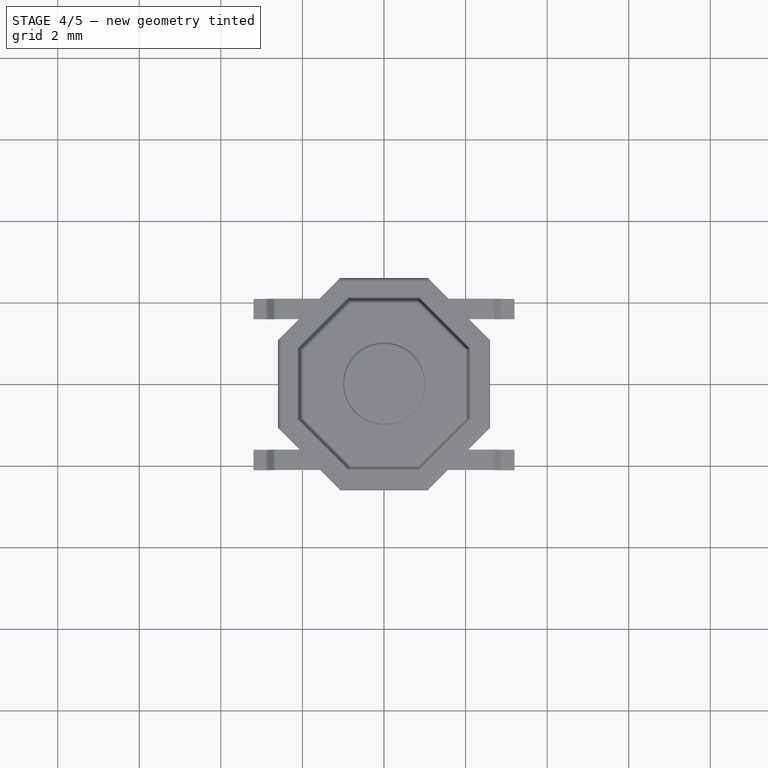
[diagram: stage 4 of 5 — top view after this stage's code; geometry added in this stage tinted green]
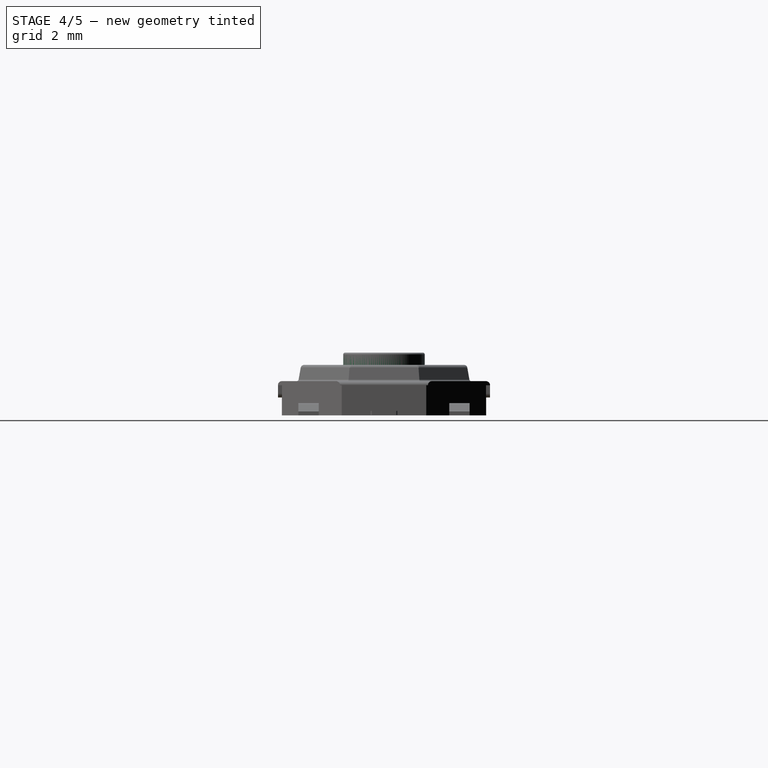
[diagram: stage 4 of 5 — right view after this stage's code; geometry added in this stage tinted green]
FEATURE [PartDesign::Fillet] Fillet001  label="6.Fillet001"
  Base = -> Pad004 [Edge21,Edge23,Edge5,Edge19]
  BaseFeature = -> Pad004
  Placement = pos=(0,0,0.84) rot=(0,0,1;0rad)
  Radius = 0.1
FEATURE [Part::MultiFuse] Fusion  label="carcaza000"
  Refine = true
  Shapes = -> [Fillet001,Fillet002,Fillet003]
FEATURE [PartDesign::Body] Body002  label="relleno001"
  Group = -> [Sketch009,Pad005,Sketch012,Pad006,Sketch013,Pad007]
  Origin = -> Origin002
  Tip = -> Pad007
FEATURE [App::DocumentObjectGroup] Grupo001  label="relleno"
  Group = -> [Body002]
FEATURE [Part::Feature] Pad007001  label="Relleno"
  shape: bbox 5.007 x 5.007 x 1.14 mm, 31 faces (baked)
FEATURE [PartDesign::Plane] DatumPlane003
  AttachmentOffset = pos=(0,0,1.54) rot=(0,0,1;0rad)
  MapMode = 5
  Placement = pos=(0,0,1.54) rot=(0,0,1;0rad)
  Support = -> [XY_Plane003]
FEATURE [Sketcher::SketchObject] Sketch014
  MapMode = 5
  Placement = pos=(0,0,1.54) rot=(0,0,1;0rad)
  Support = -> [DatumPlane003]
  sketch-geometry (1):
    g0: Circle CenterX=0 CenterY=0 CenterZ=0 NormalX=0 NormalY=0 NormalZ=1 AngleXU=0 Radius=1
  constraints (2):
    c: Coincident(g0,g-1)
    c: Radius(g0) = 1
FEATURE [PartDesign::Pad] Pad007002
  Length = 0.8
  Length2 = 100
  Placement = pos=(0,0,1.54) rot=(0,0,1;0rad)
  Profile = -> Sketch014
  Refine = true
  Reversed = true
  Type = 0
FEATURE [PartDesign::Fillet] Fillet004
  Base = -> Pad007002 [Edge2]
  BaseFeature = -> Pad007002
  Placement = pos=(0,0,1.54) rot=(0,0,1;0rad)
  Radius = 0.05
FEATURE [PartDesign::Body] Body003  label="push"
  Group = -> [DatumPlane003,Sketch014,Pad007002,Fillet004]
  Origin = -> Origin003
  Tip = -> Fillet004
FEATURE [App::DocumentObjectGroup] Grupo003  label="push001"
  Group = -> [Body003]
FEATURE [Part::Feature] Fillet004001  label="Push"
  Placement = pos=(0,0,1.54) rot=(0,0,1;0rad)
  shape: bbox 2.165 x 2.165 x 0.8 mm, 4 faces (baked)
FEATURE [Part::Fillet] Fillet004002  label="carcaza001"
  Base = -> Fusion
  Edges = 8 edges r=0.05: [Edge30,Edge31,Edge32,Edge33,Edge34,Edge35,Edge36,Edge37]
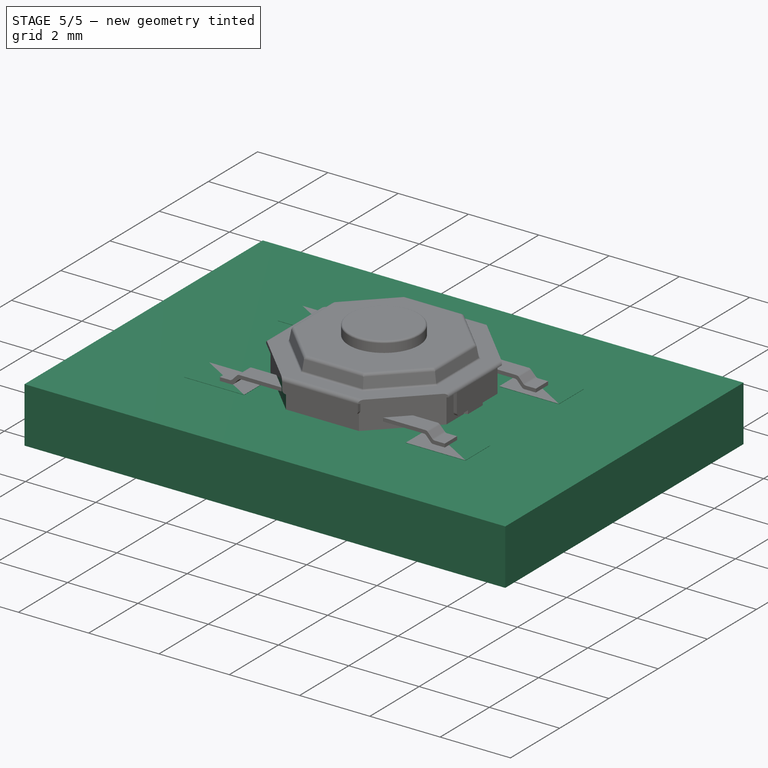
[diagram: stage 5 of 5 — iso view after this stage's code; geometry added in this stage tinted green]
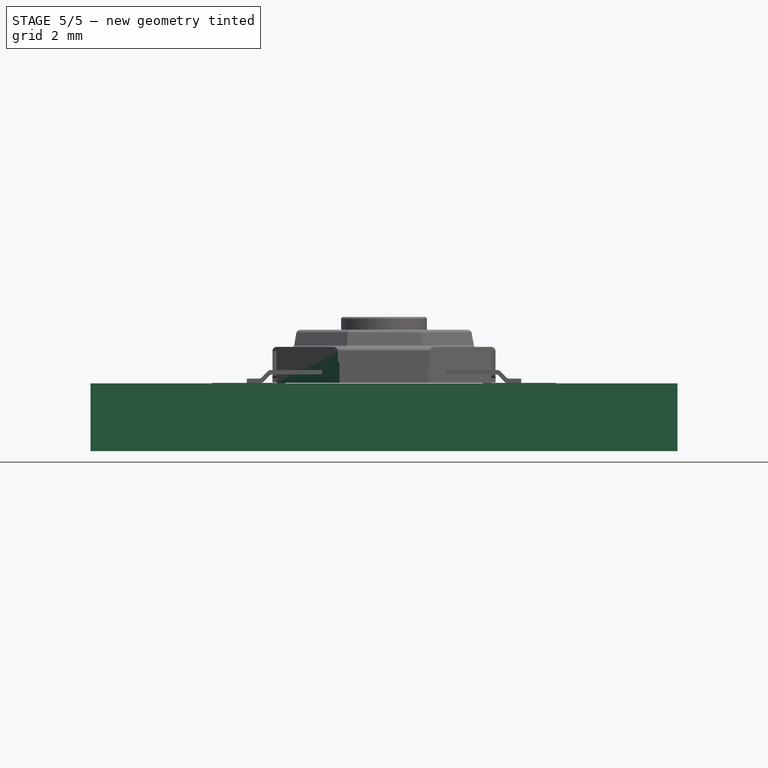
[diagram: stage 5 of 5 — front view after this stage's code; geometry added in this stage tinted green]
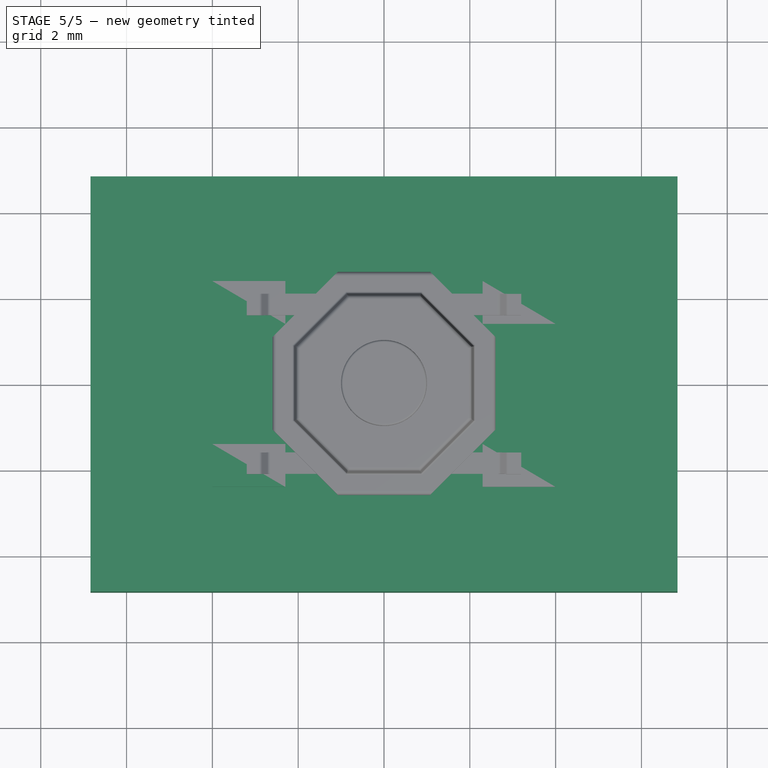
[diagram: stage 5 of 5 — top view after this stage's code; geometry added in this stage tinted green]
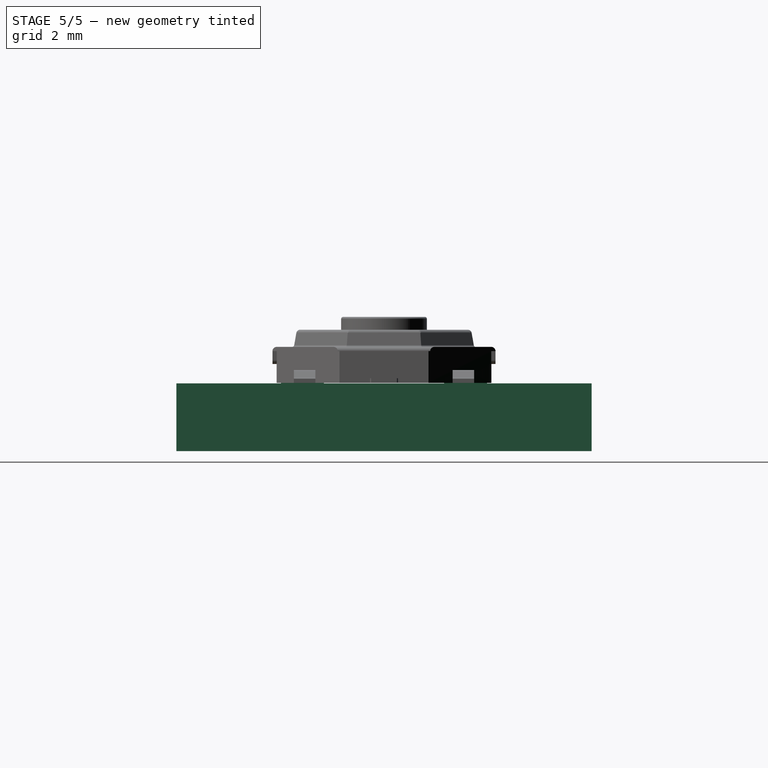
[diagram: stage 5 of 5 — right view after this stage's code; geometry added in this stage tinted green]
FEATURE [Part::FeaturePython] FCrtYd_lines  label="FCrtYd"  # a2plus imported part (geometry in sourceFile) (typed FeaturePython)
  fixedPosition = true
FEATURE [Part::FeaturePython] FFab_lines  label="FFab"  # a2plus imported part (geometry in sourceFile) (typed FeaturePython)
  fixedPosition = true
FEATURE [Part::FeaturePython] Filk_lines  label="FrontSilk"  # a2plus imported part (geometry in sourceFile) (typed FeaturePython)
  fixedPosition = true
FEATURE [Part::FeaturePython] TopPads  # a2plus imported part (geometry in sourceFile) (typed FeaturePython)
  fixedPosition = true
FEATURE [Part::FeaturePython] newPCB  label="Pcb"  # a2plus imported part (geometry in sourceFile) (typed FeaturePython)
  fixedPosition = true
FEATURE [Sketcher::SketchObject] Sketch009  label="1.Sketch009"
  MapMode = 5
  Support = -> [XY_Plane002]
  sketch-geometry (23):
    g0: Circle [constr] CenterX=0 CenterY=0 CenterZ=0 NormalX=0 NormalY=0 NormalZ=1 AngleXU=0 Radius=2.71
    g1: LineSegment StartX=-1.03707 StartY=2.50371 StartZ=0 EndX=1.03707 EndY=2.50371 EndZ=0
    g2: LineSegment StartX=1.03707 StartY=2.50371 StartZ=0 EndX=2.50371 EndY=1.03707 EndZ=0
    g3: LineSegment [constr] StartX=2.50371 StartY=1.03707 StartZ=0 EndX=2.50371 EndY=-1.03707 EndZ=0
    g4: LineSegment StartX=2.50371 StartY=-1.03707 StartZ=0 EndX=1.03707 EndY=-2.50371 EndZ=0
    g5: LineSegment StartX=1.03707 StartY=-2.50371 StartZ=0 EndX=-1.03707 EndY=-2.50371 EndZ=0
    g6: LineSegment StartX=-1.03707 StartY=-2.50371 StartZ=0 EndX=-2.50371 EndY=-1.03707 EndZ=0
    g7: LineSegment [constr] StartX=-2.50371 StartY=-1.03707 StartZ=0 EndX=-2.50371 EndY=1.03707 EndZ=0
    g8: LineSegment StartX=-2.50371 StartY=1.03707 StartZ=0 EndX=-1.03707 EndY=2.50371 EndZ=0
    g9: LineSegment StartX=2.50371 StartY=1.03707 StartZ=0 EndX=2.50371 EndY=0.325 EndZ=0
    g10: LineSegment StartX=2.50371 StartY=0.325 StartZ=0 EndX=1.86371 EndY=0.51 EndZ=0
    g11: LineSegment StartX=1.86371 StartY=0.51 StartZ=0 EndX=1.53371 EndY=0.51 EndZ=0
    g12: LineSegment StartX=1.53371 StartY=0.51 StartZ=0 EndX=1.53371 EndY=-0.51 EndZ=0
    g13: LineSegment StartX=1.53371 StartY=-0.51 StartZ=0 EndX=1.86371 EndY=-0.51 EndZ=0
    g14: LineSegment StartX=1.86371 StartY=-0.51 StartZ=0 EndX=2.50371 EndY=-0.325 EndZ=0
    g15: LineSegment StartX=2.50371 StartY=-0.325 StartZ=0 EndX=2.50371 EndY=-1.03707 EndZ=0
    g16: LineSegment StartX=-2.50371 StartY=1.03707 StartZ=0 EndX=-2.50371 EndY=0.325 EndZ=0
    g17: LineSegment StartX=-2.50371 StartY=0.325 StartZ=0 EndX=-1.86371 EndY=0.51 EndZ=0
    g18: LineSegment StartX=-1.86371 StartY=0.51 StartZ=0 EndX=-1.53371 EndY=0.51 EndZ=0
    g19: LineSegment StartX=-1.53371 StartY=0.51 StartZ=0 EndX=-1.53371 EndY=-0.51 EndZ=0
    g20: LineSegment StartX=-1.53371 StartY=-0.51 StartZ=0 EndX=-1.86371 EndY=-0.51 EndZ=0
    g21: LineSegment StartX=-1.86371 StartY=-0.51 StartZ=0 EndX=-2.50371 EndY=-0.325 EndZ=0
    g22: LineSegment StartX=-2.50371 StartY=-0.325 StartZ=0 EndX=-2.50371 EndY=-1.03707 EndZ=0
  constraints (68):
    c: Coincident(g0,g-1)
    c: PointOnObject(g1,g0)
    c: PointOnObject(g1,g0)
    c: Horizontal(g1)
    c: Coincident(g1,g2)
    c: PointOnObject(g2,g0)
    c: Coincident(g2,g3)
    c: PointOnObject(g3,g0)
    c: Coincident(g3,g4)
    c: PointOnObject(g4,g0)
    c: Coincident(g4,g5)
    c: PointOnObject(g5,g0)
    c: Horizontal(g5)
    c: Coincident(g5,g6)
    c: PointOnObject(g6,g0)
    c: Coincident(g6,g7)
    c: PointOnObject(g7,g0)
    c: Coincident(g7,g8)
    c: Coincident(g8,g1)
    c: Equal(g7,g8)
    c: Equal(g8,g1)
    c: Equal(g1,g2)
    c: Equal(g2,g3)
    c: Equal(g3,g4)
    c: Equal(g4,g5)
    c: Equal(g5,g6)
    c: Radius(g0) = 2.71
    c: Coincident(g2,g9)
    c: PointOnObject(g9,g3)
    c: Coincident(g9,g10)
    c: Coincident(g10,g11)
    c: Horizontal(g11)
    c: Coincident(g11,g12)
    c: Vertical(g12)
    c: Coincident(g12,g13)
    c: Horizontal(g13)
    c: Coincident(g13,g14)
    c: PointOnObject(g14,g3)
    c: Coincident(g14,g15)
    c: Coincident(g15,g3)
    c: Coincident(g7,g16)
    c: PointOnObject(g16,g7)
    c: Coincident(g16,g17)
    c: Coincident(g17,g18)
    c: Horizontal(g18)
    c: Coincident(g18,g19)
    c: Vertical(g19)
    c: Coincident(g19,g20)
    c: Horizontal(g20)
    c: Coincident(g20,g21)
    c: PointOnObject(g21,g7)
    c: Coincident(g21,g22)
    c: Coincident(g22,g6)
    c: Equal(g22,g16)
    c: Equal(g16,g9)
    c: Equal(g9,g15)
    c: Equal(g21,g14)
    c: Equal(g14,g10)
    c: Equal(g10,g17)
    c: Equal(g18,g20)
    c: Equal(g20,g13)
    c: Equal(g13,g11)
    c: Equal(g12,g19)
    c: Symmetric(g12,g11,g-1)
    c: DistanceY(g14,g9) = 0.65
    c: DistanceX(g16,g18) = 0.97
    c: DistanceX(g20,g20) = 0.33
    c: DistanceY(g12,g12) = 1.02
FEATURE [PartDesign::Pad] Pad005  label="1.Pad005"
  Length = 0.11
  Length2 = 100
  Profile = -> Sketch009
  Refine = true
  Type = 0
FEATURE [PartDesign::ShapeBinder] CopyPad005
  Placement = pos=(0,0,0.11) rot=(0,0,1;0rad)
FEATURE [Sketcher::SketchObject] Sketch010
  MapMode = 5
  Placement = pos=(0,0,0.11) rot=(0,0,1;0rad)
  Support = -> [CopyPad005]
FEATURE [PartDesign::ShapeBinder] CopyPad005001
  Placement = pos=(0,0,0.11) rot=(0,0,1;0rad)
FEATURE [Sketcher::SketchObject] Sketch011
  MapMode = 5
  Placement = pos=(0,0,0.11) rot=(0,0,1;0rad)
  Support = -> [CopyPad005001]
FEATURE [PartDesign::Body] Body001  label="mid-B"
  Group = -> [DatumPlane002,Sketch001,Pad001,Sketch006,Pad002,Sketch007,Pad003,Fillet,Sketch008,Pad004,Fillet001,CopyPad005,Sketch010,CopyPad005001,Sketch011]
  Origin = -> Origin001
  Tip = -> Fillet001
FEATURE [Sketcher::SketchObject] Sketch012  label="2.Sketch012"
  ExternalGeometry = -> [Pad005]
  MapMode = 5
  Placement = pos=(0,0,0.11) rot=(0,0,1;0rad)
  Support = -> [Pad005]
  sketch-geometry (8):
    g0: LineSegment StartX=-1.03707 StartY=2.50371 StartZ=0 EndX=1.03707 EndY=2.50371 EndZ=0
    g1: LineSegment StartX=1.03707 StartY=2.50371 StartZ=0 EndX=2.50371 EndY=1.03707 EndZ=0
    g2: LineSegment StartX=2.50371 StartY=1.03707 StartZ=0 EndX=2.50371 EndY=-1.03707 EndZ=0
    g3: LineSegment StartX=2.50371 StartY=-1.03707 StartZ=0 EndX=1.03707 EndY=-2.50371 EndZ=0
    g4: LineSegment StartX=1.03707 StartY=-2.50371 StartZ=0 EndX=-1.03707 EndY=-2.50371 EndZ=0
    g5: LineSegment StartX=-1.03707 StartY=-2.50371 StartZ=0 EndX=-2.50371 EndY=-1.03707 EndZ=0
    g6: LineSegment StartX=-2.50371 StartY=-1.03707 StartZ=0 EndX=-2.50371 EndY=1.03707 EndZ=0
    g7: LineSegment StartX=-2.50371 StartY=1.03707 StartZ=0 EndX=-1.03707 EndY=2.50371 EndZ=0
  constraints (16):
    c: Coincident(g-3,g0)
    c: Coincident(g0,g-6)
    c: Coincident(g0,g1)
    c: Coincident(g1,g-6)
    c: Coincident(g1,g2)
    c: Coincident(g2,g-4)
    c: Coincident(g2,g3)
    c: Coincident(g3,g-4)
    c: Coincident(g3,g4)
    c: Coincident(g4,g-5)
    c: Coincident(g4,g5)
    c: Coincident(g5,g-5)
    c: Coincident(g5,g6)
    c: Coincident(g6,g-3)
    c: Coincident(g6,g7)
    c: Coincident(g7,g0)
FEATURE [PartDesign::Pad] Pad006  label="2.Pad006"
  BaseFeature = -> Pad005
  Length = 0.63
  Length2 = 100
  Profile = -> Sketch012
  Refine = true
  Type = 0
FEATURE [Sketcher::SketchObject] Sketch013  label="3.Sketch013"
  MapMode = 5
  Placement = pos=(0,0,0.74) rot=(0,0,1;0rad)
  Support = -> [Pad006]
  sketch-geometry (9):
    g0: Circle [constr] CenterX=0 CenterY=0 CenterZ=0 NormalX=0 NormalY=0 NormalZ=1 AngleXU=0 Radius=2.08
    g1: LineSegment StartX=-0.795982 StartY=1.92167 StartZ=0 EndX=0.795982 EndY=1.92167 EndZ=0
    g2: LineSegment StartX=0.795982 StartY=1.92167 StartZ=0 EndX=1.92167 EndY=0.795982 EndZ=0
    g3: LineSegment StartX=1.92167 StartY=0.795982 StartZ=0 EndX=1.92167 EndY=-0.795982 EndZ=0
    g4: LineSegment StartX=1.92167 StartY=-0.795982 StartZ=0 EndX=0.795982 EndY=-1.92167 EndZ=0
    g5: LineSegment StartX=0.795982 StartY=-1.92167 StartZ=0 EndX=-0.795982 EndY=-1.92167 EndZ=0
    g6: LineSegment StartX=-0.795982 StartY=-1.92167 StartZ=0 EndX=-1.92167 EndY=-0.795982 EndZ=0
    g7: LineSegment StartX=-1.92167 StartY=-0.795982 StartZ=0 EndX=-1.92167 EndY=0.795982 EndZ=0
    g8: LineSegment StartX=-1.92167 StartY=0.795982 StartZ=0 EndX=-0.795982 EndY=1.92167 EndZ=0
  constraints (29):
    c: Coincident(g0,g-1)
    c: PointOnObject(g1,g0)
    c: PointOnObject(g1,g0)
    c: Horizontal(g1)
    c: Coincident(g1,g2)
    c: PointOnObject(g2,g0)
    c: Coincident(g2,g3)
    c: PointOnObject(g3,g0)
    c: Vertical(g3)
    c: Coincident(g3,g4)
    c: PointOnObject(g4,g0)
    c: Coincident(g4,g5)
    c: PointOnObject(g5,g0)
    c: Horizontal(g5)
    c: Coincident(g5,g6)
    c: PointOnObject(g6,g0)
    c: Coincident(g6,g7)
    c: PointOnObject(g7,g0)
    c: Vertical(g7)
    c: Coincident(g7,g8)
    c: Coincident(g8,g1)
    c: Equal(g8,g1)
    c: Equal(g1,g2)
    c: Equal(g2,g3)
    c: Equal(g3,g4)
    c: Equal(g4,g5)
    c: Equal(g5,g6)
    c: Equal(g6,g7)
    c: Radius(g0) = 2.08
FEATURE [PartDesign::Pad] Pad007  label="3.Pad007"
  BaseFeature = -> Pad006
  Length = 0.4
  Length2 = 100
  Profile = -> Sketch013
  Refine = true
  Type = 0
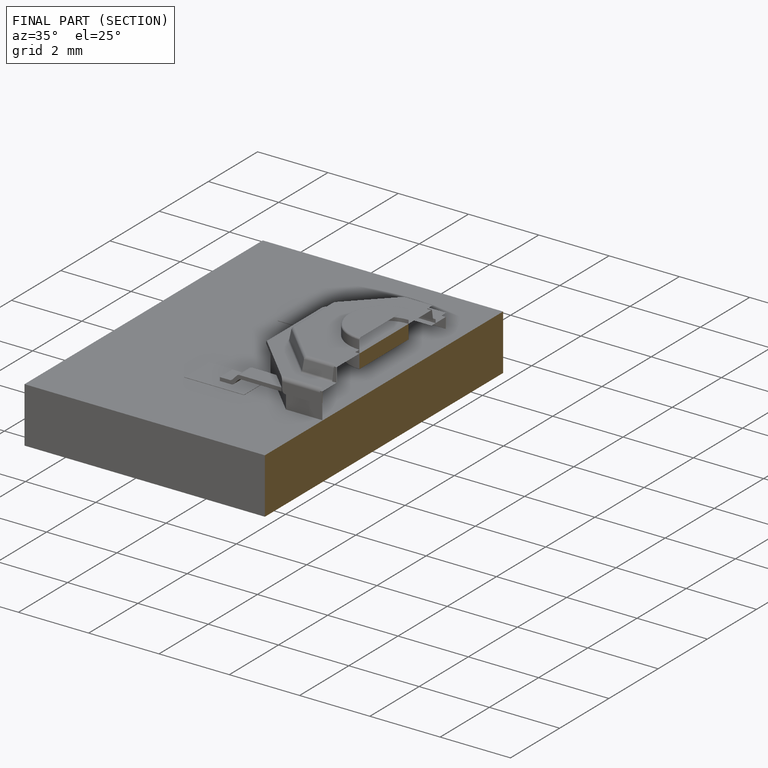
[diagram: finished part — half-section view (interior)]
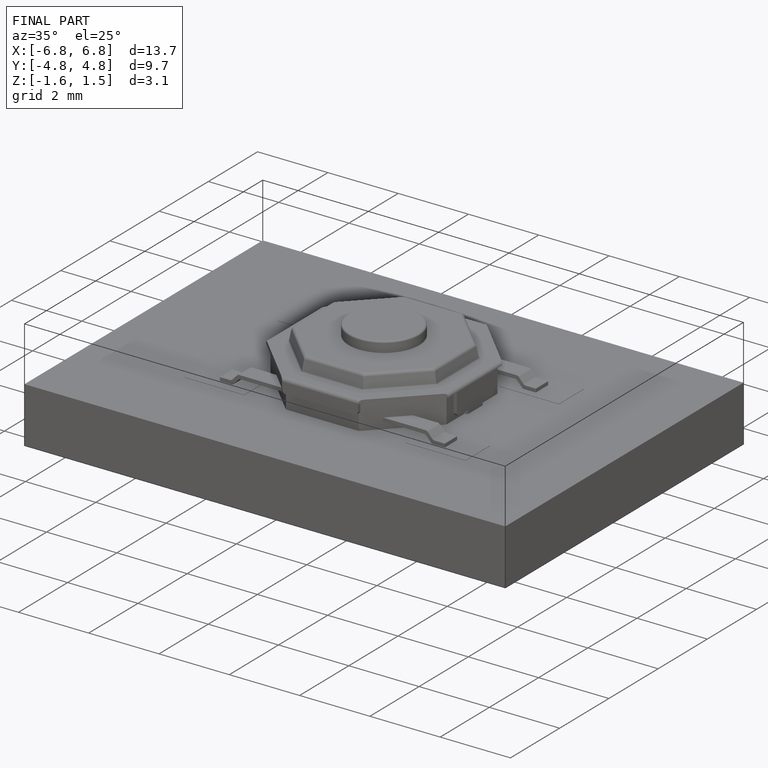
[diagram: finished part — iso view with bounding-box wireframe]
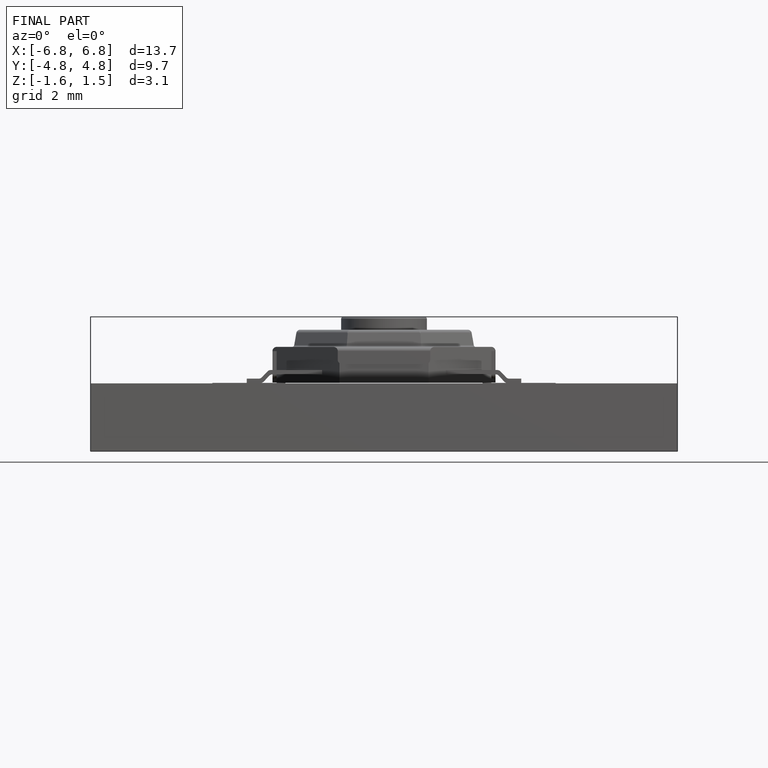
[diagram: finished part — front view with bounding-box wireframe]
